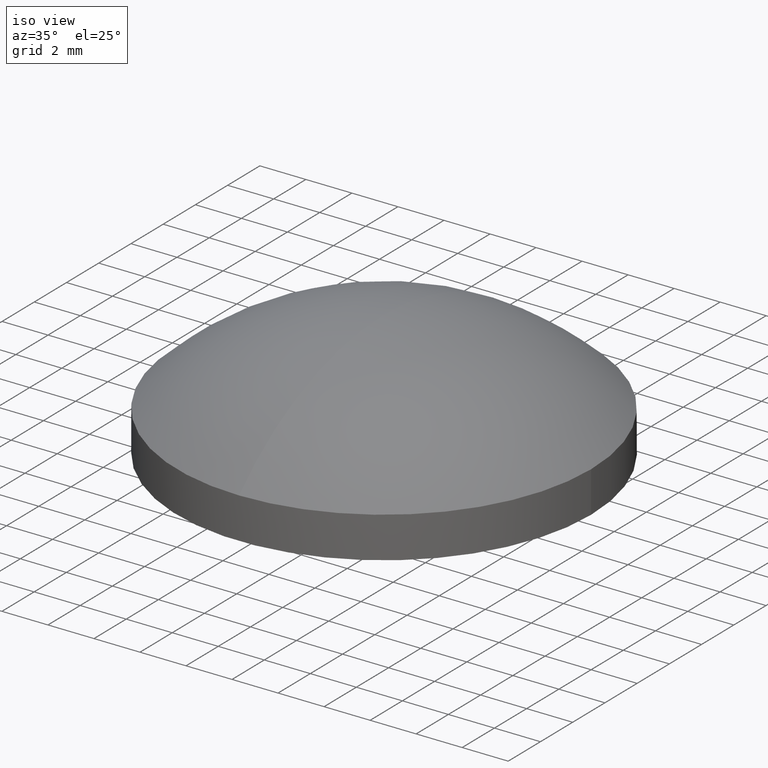
[diagram: clean part render]
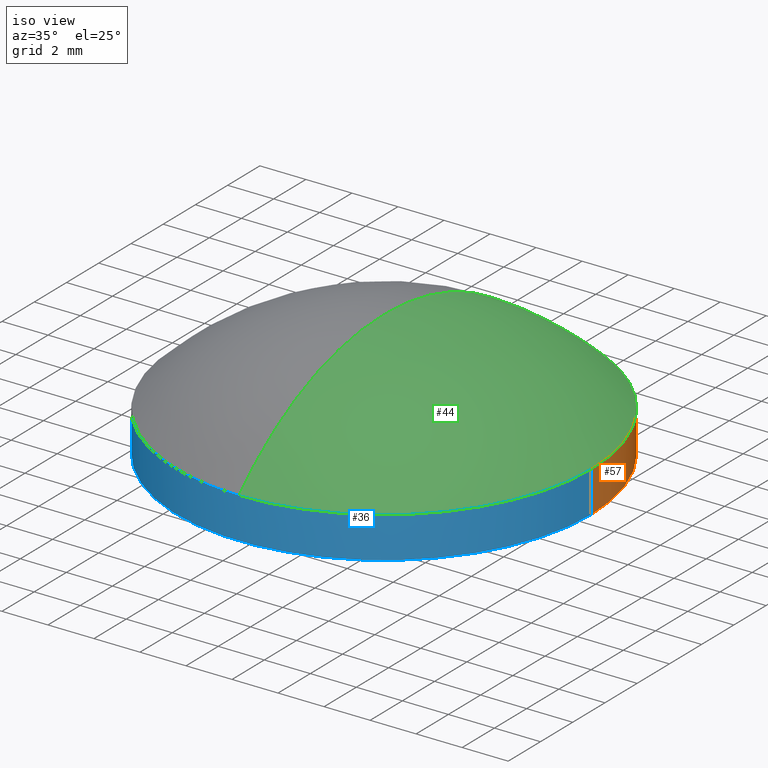
[diagram: same view with three faces highlighted in distinct colors, each labeled with its STEP entity id]
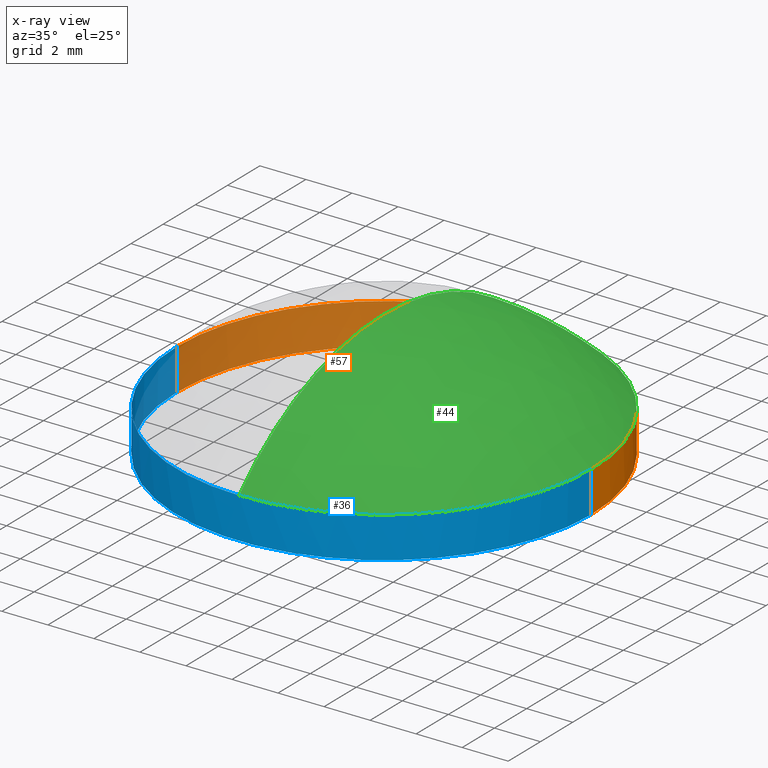
[diagram: x-ray of the same camera — body ghosted, the three highlighted faces saturated]
A machine part, iso view with three faces highlighted in distinct colors.
The next image is the same camera in x-ray (body ghosted, the three faces saturated) — at least one of them is partly hidden behind the body in this view.
Their STEP definitions:

[orange] entity #57 — the highlighted cylindrical surface (partial cylindrical patch) has radius 9 mm, axis along (-0, -0, 1).
#1 = VERTEX_POINT ( 'NONE', #91 ) ;
#2 = VERTEX_POINT ( 'NONE', #76 ) ;
#3 = EDGE_CURVE ( 'NONE', #23, #9, #68, .T. ) ;
#5 = ORIENTED_EDGE ( 'NONE', *, *, #27, .F. ) ;
#7 = ORIENTED_EDGE ( 'NONE', *, *, #3, .F. ) ;
#9 = VERTEX_POINT ( 'NONE', #64 ) ;
#13 = EDGE_CURVE ( 'NONE', #2, #1, #100, .T. ) ;
#16 = ORIENTED_EDGE ( 'NONE', *, *, #25, .F. ) ;
#19 = EDGE_CURVE ( 'NONE', #32, #2, #82, .T. ) ;
#23 = VERTEX_POINT ( 'NONE', #110 ) ;
#25 = EDGE_CURVE ( 'NONE', #32, #23, #123, .T. ) ;
#27 = EDGE_CURVE ( 'NONE', #9, #1, #120, .T. ) ;
#32 = VERTEX_POINT ( 'NONE', #141 ) ;
#33 = ORIENTED_EDGE ( 'NONE', *, *, #13, .T. ) ;
#37 = CARTESIAN_POINT ( 'NONE',  ( 0.0000000000000000000, 0.0000000000000000000, -2.730000000000000000 ) ) ;
#43 = AXIS2_PLACEMENT_3D ( 'NONE', #37, #48, #46 ) ;
#46 = DIRECTION ( 'NONE',  ( 1.000000000000000000, 0.0000000000000000000, 0.0000000000000000000 ) ) ;
#48 = DIRECTION ( 'NONE',  ( -0.0000000000000000000, -0.0000000000000000000, 1.000000000000000000 ) ) ;
#56 = EDGE_LOOP ( 'NONE', ( #58, #33, #5, #7, #16 ) ) ;
#57 = ADVANCED_FACE ( 'NONE', ( #189 ), #235, .T. ) ;
#58 = ORIENTED_EDGE ( 'NONE', *, *, #19, .T. ) ;
#64 = CARTESIAN_POINT ( 'NONE',  ( 0.0000000000000000000, 9.000000000000001800, -0.9401684798035601100 ) ) ;
#65 = DIRECTION ( 'NONE',  ( -0.0000000000000000000, -0.0000000000000000000, 1.000000000000000000 ) ) ;
#66 = CARTESIAN_POINT ( 'NONE',  ( -9.000000000000001800, 1.102145718440139700E-015, 4.308132045400366600 ) ) ;
#68 = CIRCLE ( 'NONE', #95, 9.000000000000001800 ) ;
#76 = CARTESIAN_POINT ( 'NONE',  ( -9.000000000000001800, 1.102145718440139700E-015, -2.730000000000000000 ) ) ;
#82 = CIRCLE ( 'NONE', #43, 9.000000000000001800 ) ;
#83 = VECTOR ( 'NONE', #65, 1000.000000000000000 ) ;
#87 = CARTESIAN_POINT ( 'NONE',  ( 0.0000000000000000000, 0.0000000000000000000, -0.9401684798035587800 ) ) ;
#88 = DIRECTION ( 'NONE',  ( 1.000000000000000000, 0.0000000000000000000, 0.0000000000000000000 ) ) ;
#91 = CARTESIAN_POINT ( 'NONE',  ( -9.000000000000001800, 1.102145718440139700E-015, -0.9401684798035587800 ) ) ;
#95 = AXIS2_PLACEMENT_3D ( 'NONE', #87, #101, #88 ) ;
#100 = LINE ( 'NONE', #66, #83 ) ;
#101 = DIRECTION ( 'NONE',  ( -0.0000000000000000000, -0.0000000000000000000, 1.000000000000000000 ) ) ;
#106 = DIRECTION ( 'NONE',  ( -0.0000000000000000000, -0.0000000000000000000, 1.000000000000000000 ) ) ;
#110 = CARTESIAN_POINT ( 'NONE',  ( 9.000000000000001800, 0.0000000000000000000, -0.9401684798035587800 ) ) ;
#112 = DIRECTION ( 'NONE',  ( 1.000000000000000000, 0.0000000000000000000, 0.0000000000000000000 ) ) ;
#113 = DIRECTION ( 'NONE',  ( -0.0000000000000000000, -0.0000000000000000000, 1.000000000000000000 ) ) ;
#118 = CARTESIAN_POINT ( 'NONE',  ( 0.0000000000000000000, 0.0000000000000000000, -0.9401684798035587800 ) ) ;
#119 = AXIS2_PLACEMENT_3D ( 'NONE', #118, #113, #112 ) ;
#120 = CIRCLE ( 'NONE', #119, 9.000000000000001800 ) ;
#121 = VECTOR ( 'NONE', #106, 1000.000000000000000 ) ;
#122 = CARTESIAN_POINT ( 'NONE',  ( 9.000000000000001800, 0.0000000000000000000, 4.308132045400366600 ) ) ;
#123 = LINE ( 'NONE', #122, #121 ) ;
#141 = CARTESIAN_POINT ( 'NONE',  ( 9.000000000000001800, 0.0000000000000000000, -2.730000000000000000 ) ) ;
#189 = FACE_OUTER_BOUND ( 'NONE', #56, .T. ) ;
#218 = DIRECTION ( 'NONE',  ( -0.0000000000000000000, -0.0000000000000000000, 1.000000000000000000 ) ) ;
#219 = CARTESIAN_POINT ( 'NONE',  ( 0.0000000000000000000, 0.0000000000000000000, 4.308132045400366600 ) ) ;
#230 = AXIS2_PLACEMENT_3D ( 'NONE', #219, #218, #237 ) ;
#235 = CYLINDRICAL_SURFACE ( 'NONE', #230, 9.000000000000001800 ) ;
#237 = DIRECTION ( 'NONE',  ( 1.000000000000000000, 0.0000000000000000000, 0.0000000000000000000 ) ) ;

[blue] entity #36 — the highlighted cylindrical surface (partial cylindrical patch) has radius 9 mm, axis along (-0, -0, 1).
#1 = VERTEX_POINT ( 'NONE', #91 ) ;
#2 = VERTEX_POINT ( 'NONE', #76 ) ;
#4 = VERTEX_POINT ( 'NONE', #93 ) ;
#10 = EDGE_CURVE ( 'NONE', #2, #32, #63, .T. ) ;
#12 = ORIENTED_EDGE ( 'NONE', *, *, #13, .F. ) ;
#13 = EDGE_CURVE ( 'NONE', #2, #1, #100, .T. ) ;
#22 = EDGE_CURVE ( 'NONE', #1, #4, #126, .T. ) ;
#23 = VERTEX_POINT ( 'NONE', #110 ) ;
#25 = EDGE_CURVE ( 'NONE', #32, #23, #123, .T. ) ;
#31 = ORIENTED_EDGE ( 'NONE', *, *, #10, .T. ) ;
#32 = VERTEX_POINT ( 'NONE', #141 ) ;
#34 = EDGE_CURVE ( 'NONE', #4, #23, #128, .T. ) ;
#35 = ORIENTED_EDGE ( 'NONE', *, *, #22, .F. ) ;
#36 = ADVANCED_FACE ( 'NONE', ( #129 ), #161, .T. ) ;
#39 = EDGE_LOOP ( 'NONE', ( #12, #31, #45, #40, #35 ) ) ;
#40 = ORIENTED_EDGE ( 'NONE', *, *, #34, .F. ) ;
#45 = ORIENTED_EDGE ( 'NONE', *, *, #25, .T. ) ;
#63 = CIRCLE ( 'NONE', #99, 9.000000000000001800 ) ;
#65 = DIRECTION ( 'NONE',  ( -0.0000000000000000000, -0.0000000000000000000, 1.000000000000000000 ) ) ;
#66 = CARTESIAN_POINT ( 'NONE',  ( -9.000000000000001800, 1.102145718440139700E-015, 4.308132045400366600 ) ) ;
#67 = DIRECTION ( 'NONE',  ( 1.000000000000000000, 0.0000000000000000000, 0.0000000000000000000 ) ) ;
#76 = CARTESIAN_POINT ( 'NONE',  ( -9.000000000000001800, 1.102145718440139700E-015, -2.730000000000000000 ) ) ;
#83 = VECTOR ( 'NONE', #65, 1000.000000000000000 ) ;
#91 = CARTESIAN_POINT ( 'NONE',  ( -9.000000000000001800, 1.102145718440139700E-015, -0.9401684798035587800 ) ) ;
#93 = CARTESIAN_POINT ( 'NONE',  ( -1.102145718440139700E-015, -9.000000000000001800, -0.9401684798035601100 ) ) ;
#98 = DIRECTION ( 'NONE',  ( -0.0000000000000000000, -0.0000000000000000000, 1.000000000000000000 ) ) ;
#99 = AXIS2_PLACEMENT_3D ( 'NONE', #102, #98, #67 ) ;
#100 = LINE ( 'NONE', #66, #83 ) ;
#102 = CARTESIAN_POINT ( 'NONE',  ( 0.0000000000000000000, 0.0000000000000000000, -2.730000000000000000 ) ) ;
#106 = DIRECTION ( 'NONE',  ( -0.0000000000000000000, -0.0000000000000000000, 1.000000000000000000 ) ) ;
#109 = CARTESIAN_POINT ( 'NONE',  ( 0.0000000000000000000, 0.0000000000000000000, -0.9401684798035587800 ) ) ;
#110 = CARTESIAN_POINT ( 'NONE',  ( 9.000000000000001800, 0.0000000000000000000, -0.9401684798035587800 ) ) ;
#111 = DIRECTION ( 'NONE',  ( 1.000000000000000000, 0.0000000000000000000, 0.0000000000000000000 ) ) ;
#115 = DIRECTION ( 'NONE',  ( 1.000000000000000000, 0.0000000000000000000, 0.0000000000000000000 ) ) ;
#116 = DIRECTION ( 'NONE',  ( -0.0000000000000000000, -0.0000000000000000000, 1.000000000000000000 ) ) ;
#117 = CARTESIAN_POINT ( 'NONE',  ( 0.0000000000000000000, 0.0000000000000000000, -0.9401684798035587800 ) ) ;
#121 = VECTOR ( 'NONE', #106, 1000.000000000000000 ) ;
#122 = CARTESIAN_POINT ( 'NONE',  ( 9.000000000000001800, 0.0000000000000000000, 4.308132045400366600 ) ) ;
#123 = LINE ( 'NONE', #122, #121 ) ;
#126 = CIRCLE ( 'NONE', #140, 9.000000000000001800 ) ;
#127 = AXIS2_PLACEMENT_3D ( 'NONE', #117, #116, #115 ) ;
#128 = CIRCLE ( 'NONE', #127, 9.000000000000001800 ) ;
#129 = FACE_OUTER_BOUND ( 'NONE', #39, .T. ) ;
#130 = DIRECTION ( 'NONE',  ( -0.0000000000000000000, -0.0000000000000000000, 1.000000000000000000 ) ) ;
#140 = AXIS2_PLACEMENT_3D ( 'NONE', #109, #130, #111 ) ;
#141 = CARTESIAN_POINT ( 'NONE',  ( 9.000000000000001800, 0.0000000000000000000, -2.730000000000000000 ) ) ;
#142 = DIRECTION ( 'NONE',  ( -0.0000000000000000000, -0.0000000000000000000, 1.000000000000000000 ) ) ;
#161 = CYLINDRICAL_SURFACE ( 'NONE', #173, 9.000000000000001800 ) ;
#166 = CARTESIAN_POINT ( 'NONE',  ( 0.0000000000000000000, 0.0000000000000000000, 4.308132045400366600 ) ) ;
#173 = AXIS2_PLACEMENT_3D ( 'NONE', #166, #142, #174 ) ;
#174 = DIRECTION ( 'NONE',  ( 1.000000000000000000, 0.0000000000000000000, 0.0000000000000000000 ) ) ;

[green] entity #44 — the highlighted spherical surface has radius 12.87 mm.
#3 = EDGE_CURVE ( 'NONE', #23, #9, #68, .T. ) ;
#4 = VERTEX_POINT ( 'NONE', #93 ) ;
#9 = VERTEX_POINT ( 'NONE', #64 ) ;
#14 = ORIENTED_EDGE ( 'NONE', *, *, #3, .T. ) ;
#20 = ORIENTED_EDGE ( 'NONE', *, *, #21, .T. ) ;
#21 = EDGE_CURVE ( 'NONE', #9, #59, #124, .T. ) ;
#23 = VERTEX_POINT ( 'NONE', #110 ) ;
#26 = ORIENTED_EDGE ( 'NONE', *, *, #60, .F. ) ;
#28 = ORIENTED_EDGE ( 'NONE', *, *, #34, .T. ) ;
#29 = EDGE_LOOP ( 'NONE', ( #26, #28, #14, #20 ) ) ;
#34 = EDGE_CURVE ( 'NONE', #4, #23, #128, .T. ) ;
#44 = ADVANCED_FACE ( 'NONE', ( #149 ), #212, .T. ) ;
#59 = VERTEX_POINT ( 'NONE', #216 ) ;
#60 = EDGE_CURVE ( 'NONE', #4, #59, #231, .T. ) ;
#64 = CARTESIAN_POINT ( 'NONE',  ( 0.0000000000000000000, 9.000000000000001800, -0.9401684798035601100 ) ) ;
#68 = CIRCLE ( 'NONE', #95, 9.000000000000001800 ) ;
#87 = CARTESIAN_POINT ( 'NONE',  ( 0.0000000000000000000, 0.0000000000000000000, -0.9401684798035587800 ) ) ;
#88 = DIRECTION ( 'NONE',  ( 1.000000000000000000, 0.0000000000000000000, 0.0000000000000000000 ) ) ;
#93 = CARTESIAN_POINT ( 'NONE',  ( -1.102145718440139700E-015, -9.000000000000001800, -0.9401684798035601100 ) ) ;
#95 = AXIS2_PLACEMENT_3D ( 'NONE', #87, #101, #88 ) ;
#101 = DIRECTION ( 'NONE',  ( -0.0000000000000000000, -0.0000000000000000000, 1.000000000000000000 ) ) ;
#103 = DIRECTION ( 'NONE',  ( 1.000000000000000000, 0.0000000000000000000, 0.0000000000000000000 ) ) ;
#104 = DIRECTION ( 'NONE',  ( 0.0000000000000000000, 0.0000000000000000000, -1.000000000000000000 ) ) ;
#107 = CARTESIAN_POINT ( 'NONE',  ( 0.0000000000000000000, 0.0000000000000000000, -10.14000000000000100 ) ) ;
#110 = CARTESIAN_POINT ( 'NONE',  ( 9.000000000000001800, 0.0000000000000000000, -0.9401684798035587800 ) ) ;
#115 = DIRECTION ( 'NONE',  ( 1.000000000000000000, 0.0000000000000000000, 0.0000000000000000000 ) ) ;
#116 = DIRECTION ( 'NONE',  ( -0.0000000000000000000, -0.0000000000000000000, 1.000000000000000000 ) ) ;
#117 = CARTESIAN_POINT ( 'NONE',  ( 0.0000000000000000000, 0.0000000000000000000, -0.9401684798035587800 ) ) ;
#124 = CIRCLE ( 'NONE', #125, 12.86999999999999900 ) ;
#125 = AXIS2_PLACEMENT_3D ( 'NONE', #107, #103, #104 ) ;
#127 = AXIS2_PLACEMENT_3D ( 'NONE', #117, #116, #115 ) ;
#128 = CIRCLE ( 'NONE', #127, 9.000000000000001800 ) ;
#149 = FACE_OUTER_BOUND ( 'NONE', #29, .T. ) ;
#196 = AXIS2_PLACEMENT_3D ( 'NONE', #204, #214, #199 ) ;
#199 = DIRECTION ( 'NONE',  ( 0.0000000000000000000, 1.000000000000000000, 0.0000000000000000000 ) ) ;
#204 = CARTESIAN_POINT ( 'NONE',  ( 0.0000000000000000000, 0.0000000000000000000, -10.14000000000000100 ) ) ;
#212 = SPHERICAL_SURFACE ( 'NONE', #196, 12.86999999999999900 ) ;
#214 = DIRECTION ( 'NONE',  ( -1.000000000000000000, 0.0000000000000000000, 0.0000000000000000000 ) ) ;
#216 = CARTESIAN_POINT ( 'NONE',  ( 0.0000000000000000000, 7.880341886846997100E-016, 2.730000000000000000 ) ) ;
#221 = DIRECTION ( 'NONE',  ( -1.000000000000000000, 1.224606353822377300E-016, 0.0000000000000000000 ) ) ;
#222 = CARTESIAN_POINT ( 'NONE',  ( 0.0000000000000000000, 0.0000000000000000000, -10.14000000000000100 ) ) ;
#223 = AXIS2_PLACEMENT_3D ( 'NONE', #222, #221, #247 ) ;
#231 = CIRCLE ( 'NONE', #223, 12.86999999999999900 ) ;
#247 = DIRECTION ( 'NONE',  ( -1.224606353822377300E-016, -1.000000000000000000, 0.0000000000000000000 ) ) ;